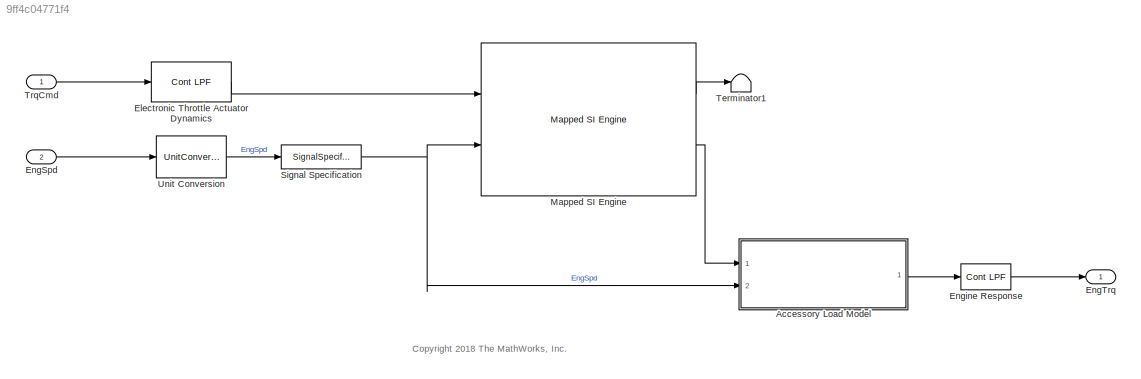
MODEL slx_9ff4c04771f4
KIND model
CONFIG AbsTol = auto
CONFIG EnableMultiTasking = on
CONFIG FixedStep = 0.001
CONFIG MaxStep = auto
CONFIG MinStep = auto
CONFIG RelTol = 1e-3
CONFIG SampleTimeConstraint = Unconstrained
CONFIG Solver = ode23t
CONFIG SolverName = ode23t
CONFIG StartTime = 0.0
CONFIG StopTime = inf
WORKSPACE source: mxarray member
WORKSPACE AccPwrbp = [0 3.07795609935]
WORKSPACE AccSpdbp = [256.496417196 641.24104299]
WORKSPACE AfrStoich = 14.6
WORKSPACE Cps = 2
WORKSPACE NCyl = 6
WORKSPACE Pstd = 101325
WORKSPACE Rair = 287
WORKSPACE Tstd = 293.15
WORKSPACE Vd = 0.00359999893917
WORKSPACE f_air = [0 0 0 0 0 0 0 0 0 0 0 0 ... (256 elements, 16x16)]
WORKSPACE f_co = [0 0 0 0 0 0 0 0 0 0 0 0 ... (256 elements, 16x16)]
WORKSPACE f_co2 = [0 0 0 0 0 0 0 0 0 0 0 0 ... (256 elements, 16x16)]
WORKSPACE f_eff = [0 350.753466782 328.05948506 313.268671005 303.348195903 297.340325295 293.478152627 291.797966365 291.798018438 291.798071207 291.798124411 291.798172385 ... (256 elements, 16x16)]
WORKSPACE f_fuel = [0 0 0 0 0 0 0 0 0 0 0 0 ... (256 elements, 16x16)]
WORKSPACE f_hc = [0 0 0 0 0 0 0 0 0 0 0 0 ... (256 elements, 16x16)]
WORKSPACE f_nox = [0 0 0 0 0 0 0 0 0 0 0 0 ... (256 elements, 16x16)]
WORKSPACE f_pm = [0 0 0 0 0 0 0 0 0 0 0 0 ... (256 elements, 16x16)]
WORKSPACE f_tbrake = [0 80.7204067348 99.7652469493 118.69381236 137.622341282 156.550901814 175.479464551 180.804356543 180.803988299 180.803666493 180.803369276 180.803064185 ... (256 elements, 16x16)]
WORKSPACE f_tbrake_n_bpt = [0 641.24104299 900.790988962 1160.34093493 1419.89088091 1679.44082688 1938.99077285 2198.54071882 2458.09066479 2717.64061077 2977.19055674 3236.74050271 ... (16 elements, 1x16)]
WORKSPACE f_tbrake_t_bpt = [0 35 53.9285714286 72.8571428571 91.7857142857 110.714285714 129.642857143 148.571428571 167.5 186.428571429 205.357142857 224.285714286 ... (16 elements, 1x16)]
WORKSPACE f_texh = [762.273993769 762.941951792 776.57840337 790.535834434 800.856847168 863.73255561 896.950654556 906.72093477 906.720129025 906.720506327 906.719870748 906.718704777 ... (256 elements, 16x16)]
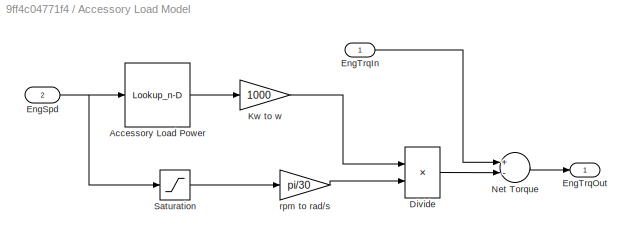
BLOCK [SubSystem] Accessory Load Model
  Ports = [2, 1]
  RequestExecContextInheritance = off
BLOCK [Lookup_n-D] Accessory Load Model/Accessory Load Power
  BreakpointsForDimension1 = AccSpdbp
  ExtrapMethod = Clip
  InternalRulePriority = Speed
  LookupTableObject = ''
  NumberOfTableDimensions = 1
  Ports = [1, 1]
  RndMeth = Simplest
  Table = AccPwrbp
BLOCK [Product] Accessory Load Model/Divide
  InputSameDT = off
  Inputs = */
  OutDataTypeStr = Inherit: Inherit via internal rule
  Ports = [2, 1]
  RndMeth = Floor
  SaturateOnIntegerOverflow = off
BLOCK [Inport] Accessory Load Model/EngSpd
  IconDisplay = Port number
  Port = 2
BLOCK [Inport] Accessory Load Model/EngTrqIn
  IconDisplay = Port number
BLOCK [Outport] Accessory Load Model/EngTrqOut
  IconDisplay = Port number
  Unit = N*m
  VectorParamsAs1DForOutWhenUnconnected = off
BLOCK [Gain] Accessory Load Model/Kw to w
  Gain = 1000
  OutDataTypeStr = Inherit: Inherit via internal rule
  ParamDataTypeStr = Inherit: Inherit via internal rule
  SaturateOnIntegerOverflow = off
BLOCK [Sum] Accessory Load Model/Net Torque
  InputSameDT = off
  Inputs = +-
  OutDataTypeStr = Inherit: Inherit via internal rule
  Ports = [2, 1]
  SaturateOnIntegerOverflow = off
BLOCK [Saturate] Accessory Load Model/Saturation
  InputPortMap = u0
  LowerLimit = 300
  Ports = [1, 1]
  UpperLimit = Inf
BLOCK [Gain] Accessory Load Model/rpm to rad//s
  Gain = pi/30
  OutDataTypeStr = Inherit: Inherit via internal rule
  ParamDataTypeStr = Inherit: Inherit via internal rule
  SaturateOnIntegerOverflow = off
BLOCK [Reference] Electronic Throttle Actuator Dynamics  REF=autolibutils/Cont LPF
  Ports = [1, 1]
  SourceBlock = autolibutils/Cont LPF
  SourceProductBaseCode = PW
  SourceProductName = Powertrain Blockset
BLOCK [Inport] EngSpd
  IconDisplay = Port number
  Port = 2
  Unit = rad/s
BLOCK [Outport] EngTrq
  IconDisplay = Port number
  VectorParamsAs1DForOutWhenUnconnected = off
BLOCK [Reference] Engine Response  REF=autolibutils/Cont LPF
  Ports = [1, 1]
  SourceBlock = autolibutils/Cont LPF
  SourceProductBaseCode = PW
  SourceProductName = Powertrain Blockset
BLOCK [Reference] Mapped SI Engine  REF=autolibsharedmappedengines/Mapped SI Engine
  Ports = [2, 2]
  SourceBlock = autolibsharedmappedengines/Mapped SI Engine
  SourceProductBaseCode = PW
  SourceProductName = Powertrain Blockset
  SourceType = Mapped SI Engine
BLOCK [SignalSpecification] Signal Specification
  Unit = rpm
BLOCK [Terminator] Terminator1
BLOCK [Inport] TrqCmd
  IconDisplay = Port number
BLOCK [UnitConversion] Unit Conversion
ANNOTATION (root): <copyright redacted>
LINE Accessory Load Model/Accessory Load Power:1 -> Accessory Load Model/Kw to w:1
LINE Accessory Load Model/Divide:1 -> Accessory Load Model/Net Torque:2
NET Accessory Load Model/EngSpd:1 -> Accessory Load Model/Accessory Load Power:1, Accessory Load Model/Saturation:1
LINE Accessory Load Model/EngTrqIn:1 -> Accessory Load Model/Net Torque:1
LINE Accessory Load Model/Kw to w:1 -> Accessory Load Model/Divide:1
LINE Accessory Load Model/Net Torque:1 -> Accessory Load Model/EngTrqOut:1
LINE Accessory Load Model/Saturation:1 -> Accessory Load Model/rpm to rad//s:1
LINE Accessory Load Model/rpm to rad//s:1 -> Accessory Load Model/Divide:2
LINE Accessory Load Model:1 -> Engine Response:1
LINE Electronic Throttle Actuator Dynamics:1 -> Mapped SI Engine:1
LINE EngSpd:1 -> Unit Conversion:1
LINE Engine Response:1 -> EngTrq:1
LINE Mapped SI Engine:1 -> Terminator1:1
LINE Mapped SI Engine:2 -> Accessory Load Model:1
NET Signal Specification:1 -> Accessory Load Model:2, Mapped SI Engine:2
LINE TrqCmd:1 -> Electronic Throttle Actuator Dynamics:1
LINE Unit Conversion:1 -> Signal Specification:1
note: NET lines group one-source signal fan-out (src -> all destinations, sorted); 1:1 wires keep LINE
